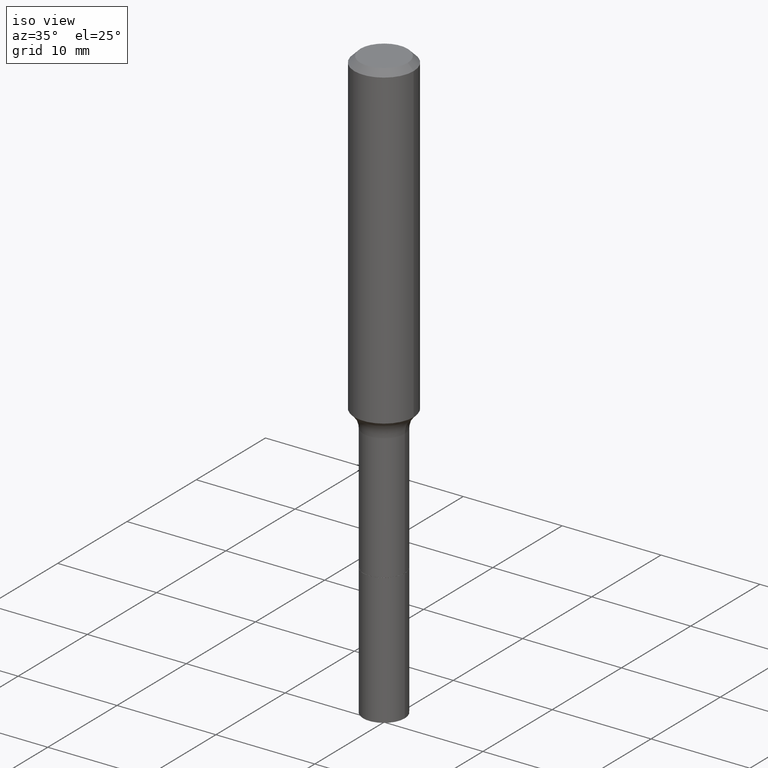
[diagram: clean part render]
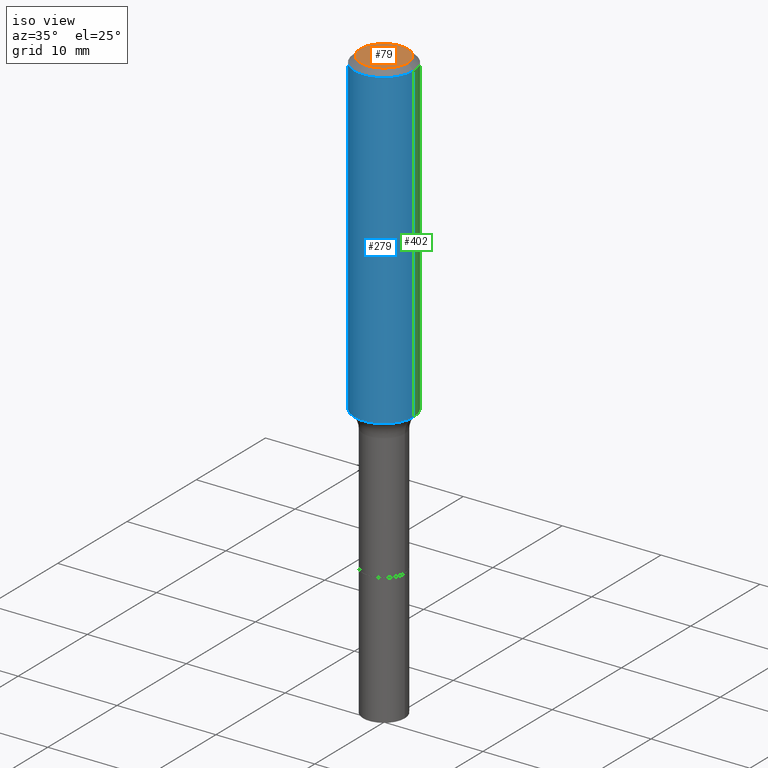
[diagram: same view with three faces highlighted in distinct colors, each labeled with its STEP entity id]
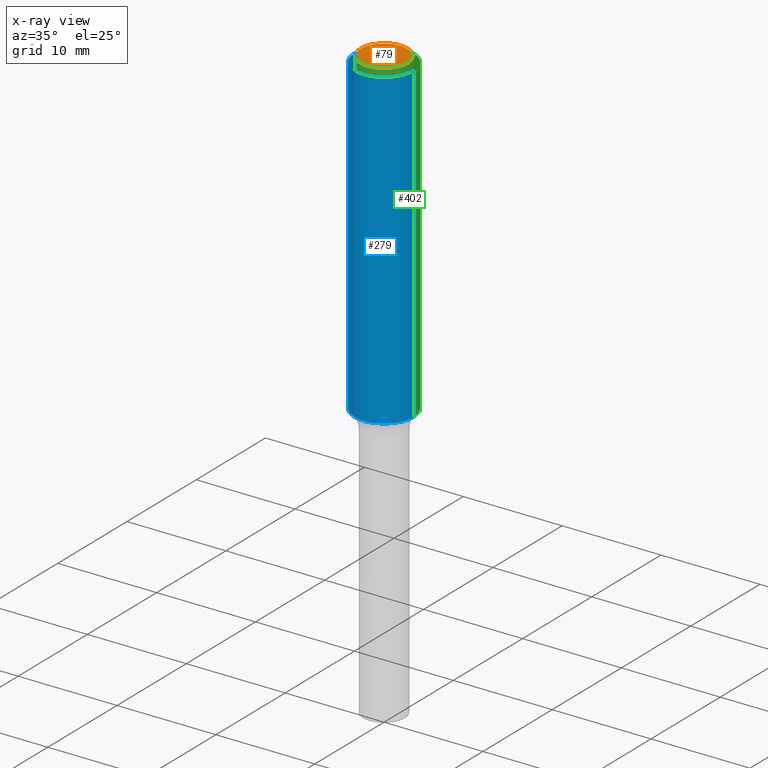
[diagram: x-ray of the same camera — body ghosted, the three highlighted faces saturated]
A machine part, iso view with three faces highlighted in distinct colors.
The next image is the same camera in x-ray (body ghosted, the three faces saturated) — at least one of them is partly hidden behind the body in this view.
Their STEP definitions:

[orange] entity #79 — the highlighted planar face has unit normal (0, -0, -1).
#6 = DIRECTION ( 'NONE',  ( 1.000000000000000000, -6.982962677686267499E-15, 4.875432709231658792E-29 ) ) ;
#12 = EDGE_CURVE ( 'NONE', #53, #33, #370, .T. ) ;
#33 = VERTEX_POINT ( 'NONE', #508 ) ;
#43 = PLANE ( 'NONE',  #92 ) ;
#53 = VERTEX_POINT ( 'NONE', #274 ) ;
#79 = ADVANCED_FACE ( 'NONE', ( #281 ), #43, .F. ) ;
#92 = AXIS2_PLACEMENT_3D ( 'NONE', #204, #474, #438 ) ;
#135 = ORIENTED_EDGE ( 'NONE', *, *, #221, .T. ) ;
#204 = CARTESIAN_POINT ( 'NONE',  ( 3.772893820736570314E-46, -5.386692455541008845E-32, -1.542810037565835988E-17 ) ) ;
#218 = AXIS2_PLACEMENT_3D ( 'NONE', #273, #343, #387 ) ;
#221 = EDGE_CURVE ( 'NONE', #33, #53, #228, .T. ) ;
#228 = CIRCLE ( 'NONE', #243, 0.09447999999999998066 ) ;
#243 = AXIS2_PLACEMENT_3D ( 'NONE', #489, #406, #6 ) ;
#267 = EDGE_LOOP ( 'NONE', ( #338, #135 ) ) ;
#273 = CARTESIAN_POINT ( 'NONE',  ( 7.545787641473140628E-46, -1.077338491108201769E-31, -3.085620075131671975E-17 ) ) ;
#274 = CARTESIAN_POINT ( 'NONE',  ( -0.09447999999999998066, 7.009847083995354710E-16, -3.085620075132147757E-17 ) ) ;
#281 = FACE_OUTER_BOUND ( 'NONE', #267, .T. ) ;
#338 = ORIENTED_EDGE ( 'NONE', *, *, #12, .T. ) ;
#343 = DIRECTION ( 'NONE',  ( -2.445468806185136597E-29, 3.491481338843145583E-15, 1.000000000000000000 ) ) ;
#370 = CIRCLE ( 'NONE', #218, 0.09447999999999998066 ) ;
#387 = DIRECTION ( 'NONE',  ( 1.000000000000000000, -6.982962677686267499E-15, 4.875432709231658792E-29 ) ) ;
#406 = DIRECTION ( 'NONE',  ( -2.445468806185136597E-29, 3.491481338843145583E-15, 1.000000000000000000 ) ) ;
#438 = DIRECTION ( 'NONE',  ( -1.000000000000000000, 6.982962677686265922E-15, -4.876176775795935793E-29 ) ) ;
#474 = DIRECTION ( 'NONE',  ( 2.438088387897960049E-29, -3.491481338843145188E-15, -1.000000000000000000 ) ) ;
#489 = CARTESIAN_POINT ( 'NONE',  ( 7.545787641473140628E-46, -1.077338491108201769E-31, -3.085620075131671975E-17 ) ) ;
#508 = CARTESIAN_POINT ( 'NONE',  ( 0.09447999999999998066, -7.704367267948738690E-16, -3.085620075131172158E-17 ) ) ;

[blue] entity #279 — the highlighted cylindrical surface (edge-blend (fillet) strip) has radius 2.9997 mm, axis along (-0, 0, 1).
#10 = DIRECTION ( 'NONE',  ( -2.445468806185136597E-29, 3.491481338843145583E-15, 1.000000000000000000 ) ) ;
#14 = CARTESIAN_POINT ( 'NONE',  ( 0.1181000000000001493, -5.254418634876762713E-15, -1.268725309615930552 ) ) ;
#19 = ORIENTED_EDGE ( 'NONE', *, *, #27, .F. ) ;
#23 = DIRECTION ( 'NONE',  ( -2.445468806185136597E-29, 3.491481338843145583E-15, 1.000000000000000000 ) ) ;
#27 = EDGE_CURVE ( 'NONE', #48, #144, #328, .T. ) ;
#31 = VECTOR ( 'NONE', #440, 39.37007874015748143 ) ;
#48 = VERTEX_POINT ( 'NONE', #226 ) ;
#78 = CARTESIAN_POINT ( 'NONE',  ( 0.1181000000000000660, -8.246878922347485584E-16, 5.758764772215003944E-30 ) ) ;
#90 = VERTEX_POINT ( 'NONE', #348 ) ;
#105 = DIRECTION ( 'NONE',  ( 1.000000000000000000, -6.982962677686266711E-15, 0.000000000000000000 ) ) ;
#132 = EDGE_CURVE ( 'NONE', #301, #144, #480, .T. ) ;
#138 = CARTESIAN_POINT ( 'NONE',  ( 3.102628168283337457E-29, -4.429730742642013662E-15, -1.268725309615930552 ) ) ;
#144 = VERTEX_POINT ( 'NONE', #311 ) ;
#185 = ORIENTED_EDGE ( 'NONE', *, *, #132, .T. ) ;
#201 = AXIS2_PLACEMENT_3D ( 'NONE', #138, #10, #323 ) ;
#226 = CARTESIAN_POINT ( 'NONE',  ( -0.1180999999999999966, -1.416948795000065377E-15, -0.02362000000000014435 ) ) ;
#245 = CARTESIAN_POINT ( 'NONE',  ( -0.1181000000000000660, 8.391509709326787887E-16, -5.809262341591047287E-30 ) ) ;
#252 = DIRECTION ( 'NONE',  ( 1.000000000000000000, -6.982962677686266711E-15, 4.876176775795936353E-29 ) ) ;
#258 = CARTESIAN_POINT ( 'NONE',  ( 0.000000000000000000, 0.000000000000000000, 0.000000000000000000 ) ) ;
#261 = CYLINDRICAL_SURFACE ( 'NONE', #320, 0.1181000000000000660 ) ;
#270 = CIRCLE ( 'NONE', #201, 0.1181000000000001493 ) ;
#279 = ADVANCED_FACE ( 'NONE', ( #447 ), #261, .T. ) ;
#292 = DIRECTION ( 'NONE',  ( -2.445468806185136597E-29, 3.491481338843145583E-15, 1.000000000000000000 ) ) ;
#301 = VERTEX_POINT ( 'NONE', #14 ) ;
#311 = CARTESIAN_POINT ( 'NONE',  ( 0.1180999999999999966, -9.071566814582237199E-16, -0.02362000000000014435 ) ) ;
#317 = LINE ( 'NONE', #245, #31 ) ;
#320 = AXIS2_PLACEMENT_3D ( 'NONE', #258, #292, #252 ) ;
#323 = DIRECTION ( 'NONE',  ( 1.000000000000000000, -6.982962677686264344E-15, 0.000000000000000000 ) ) ;
#328 = CIRCLE ( 'NONE', #342, 0.1180999999999999966 ) ;
#339 = ORIENTED_EDGE ( 'NONE', *, *, #458, .F. ) ;
#342 = AXIS2_PLACEMENT_3D ( 'NONE', #469, #23, #105 ) ;
#348 = CARTESIAN_POINT ( 'NONE',  ( -0.1181000000000001493, -3.590579771709334676E-15, -1.268725309615930552 ) ) ;
#355 = EDGE_CURVE ( 'NONE', #90, #301, #270, .T. ) ;
#385 = EDGE_LOOP ( 'NONE', ( #339, #496, #185, #19 ) ) ;
#440 = DIRECTION ( 'NONE',  ( -2.445468806185136877E-29, 3.491481338843145188E-15, 1.000000000000000000 ) ) ;
#443 = DIRECTION ( 'NONE',  ( -2.445468806185136877E-29, 3.491481338843145188E-15, 1.000000000000000000 ) ) ;
#447 = FACE_OUTER_BOUND ( 'NONE', #385, .T. ) ;
#458 = EDGE_CURVE ( 'NONE', #90, #48, #317, .T. ) ;
#469 = CARTESIAN_POINT ( 'NONE',  ( 5.776197320209328408E-31, -8.246878922347560526E-17, -0.02362000000000014435 ) ) ;
#480 = LINE ( 'NONE', #78, #481 ) ;
#481 = VECTOR ( 'NONE', #443, 39.37007874015748143 ) ;
#496 = ORIENTED_EDGE ( 'NONE', *, *, #355, .T. ) ;

[green] entity #402 — the highlighted cylindrical surface (edge-blend (fillet) strip) has radius 2.9997 mm, axis along (-0, 0, 1).
#7 = ORIENTED_EDGE ( 'NONE', *, *, #132, .F. ) ;
#14 = CARTESIAN_POINT ( 'NONE',  ( 0.1181000000000001493, -5.254418634876762713E-15, -1.268725309615930552 ) ) ;
#31 = VECTOR ( 'NONE', #440, 39.37007874015748143 ) ;
#48 = VERTEX_POINT ( 'NONE', #226 ) ;
#63 = EDGE_LOOP ( 'NONE', ( #372, #211, #448, #7 ) ) ;
#78 = CARTESIAN_POINT ( 'NONE',  ( 0.1181000000000000660, -8.246878922347485584E-16, 5.758764772215003944E-30 ) ) ;
#89 = FACE_OUTER_BOUND ( 'NONE', #63, .T. ) ;
#90 = VERTEX_POINT ( 'NONE', #348 ) ;
#91 = DIRECTION ( 'NONE',  ( -2.445468806185136597E-29, 3.491481338843145583E-15, 1.000000000000000000 ) ) ;
#102 = CARTESIAN_POINT ( 'NONE',  ( 3.102628168283337457E-29, -4.429730742642013662E-15, -1.268725309615930552 ) ) ;
#132 = EDGE_CURVE ( 'NONE', #301, #144, #480, .T. ) ;
#143 = DIRECTION ( 'NONE',  ( -2.445468806185136597E-29, 3.491481338843145583E-15, 1.000000000000000000 ) ) ;
#144 = VERTEX_POINT ( 'NONE', #311 ) ;
#158 = CIRCLE ( 'NONE', #262, 0.1180999999999999966 ) ;
#193 = CIRCLE ( 'NONE', #336, 0.1181000000000001493 ) ;
#211 = ORIENTED_EDGE ( 'NONE', *, *, #458, .T. ) ;
#225 = DIRECTION ( 'NONE',  ( 1.000000000000000000, -6.982962677686266711E-15, 4.876176775795936353E-29 ) ) ;
#226 = CARTESIAN_POINT ( 'NONE',  ( -0.1180999999999999966, -1.416948795000065377E-15, -0.02362000000000014435 ) ) ;
#245 = CARTESIAN_POINT ( 'NONE',  ( -0.1181000000000000660, 8.391509709326787887E-16, -5.809262341591047287E-30 ) ) ;
#262 = AXIS2_PLACEMENT_3D ( 'NONE', #332, #484, #495 ) ;
#264 = CARTESIAN_POINT ( 'NONE',  ( 0.000000000000000000, 0.000000000000000000, 0.000000000000000000 ) ) ;
#301 = VERTEX_POINT ( 'NONE', #14 ) ;
#303 = EDGE_CURVE ( 'NONE', #301, #90, #193, .T. ) ;
#311 = CARTESIAN_POINT ( 'NONE',  ( 0.1180999999999999966, -9.071566814582237199E-16, -0.02362000000000014435 ) ) ;
#317 = LINE ( 'NONE', #245, #31 ) ;
#332 = CARTESIAN_POINT ( 'NONE',  ( 5.776197320209328408E-31, -8.246878922347560526E-17, -0.02362000000000014435 ) ) ;
#334 = CYLINDRICAL_SURFACE ( 'NONE', #433, 0.1181000000000000660 ) ;
#336 = AXIS2_PLACEMENT_3D ( 'NONE', #102, #91, #365 ) ;
#348 = CARTESIAN_POINT ( 'NONE',  ( -0.1181000000000001493, -3.590579771709334676E-15, -1.268725309615930552 ) ) ;
#365 = DIRECTION ( 'NONE',  ( 1.000000000000000000, -6.982962677686264344E-15, 0.000000000000000000 ) ) ;
#372 = ORIENTED_EDGE ( 'NONE', *, *, #303, .T. ) ;
#393 = EDGE_CURVE ( 'NONE', #144, #48, #158, .T. ) ;
#402 = ADVANCED_FACE ( 'NONE', ( #89 ), #334, .T. ) ;
#433 = AXIS2_PLACEMENT_3D ( 'NONE', #264, #143, #225 ) ;
#440 = DIRECTION ( 'NONE',  ( -2.445468806185136877E-29, 3.491481338843145188E-15, 1.000000000000000000 ) ) ;
#443 = DIRECTION ( 'NONE',  ( -2.445468806185136877E-29, 3.491481338843145188E-15, 1.000000000000000000 ) ) ;
#448 = ORIENTED_EDGE ( 'NONE', *, *, #393, .F. ) ;
#458 = EDGE_CURVE ( 'NONE', #90, #48, #317, .T. ) ;
#480 = LINE ( 'NONE', #78, #481 ) ;
#481 = VECTOR ( 'NONE', #443, 39.37007874015748143 ) ;
#484 = DIRECTION ( 'NONE',  ( -2.445468806185136597E-29, 3.491481338843145583E-15, 1.000000000000000000 ) ) ;
#495 = DIRECTION ( 'NONE',  ( 1.000000000000000000, -6.982962677686266711E-15, 0.000000000000000000 ) ) ;